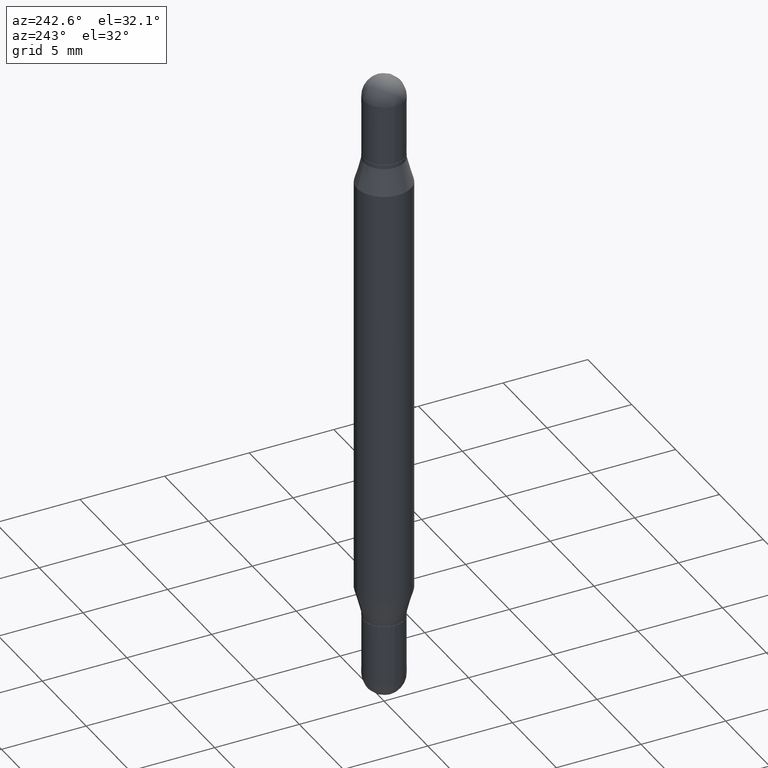
[diagram: clean part render]
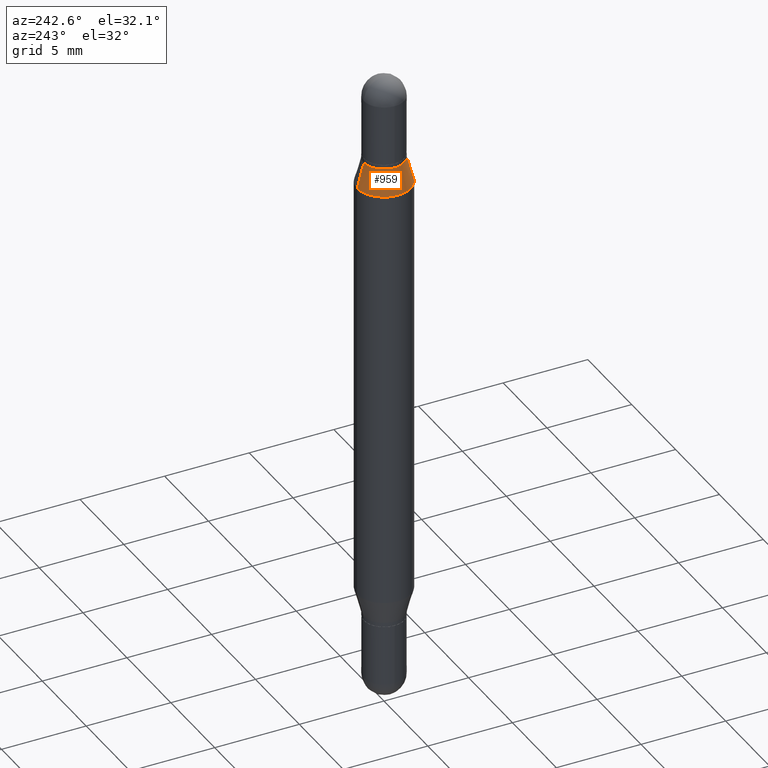
[diagram: same view with one face highlighted and labeled with its STEP entity id]
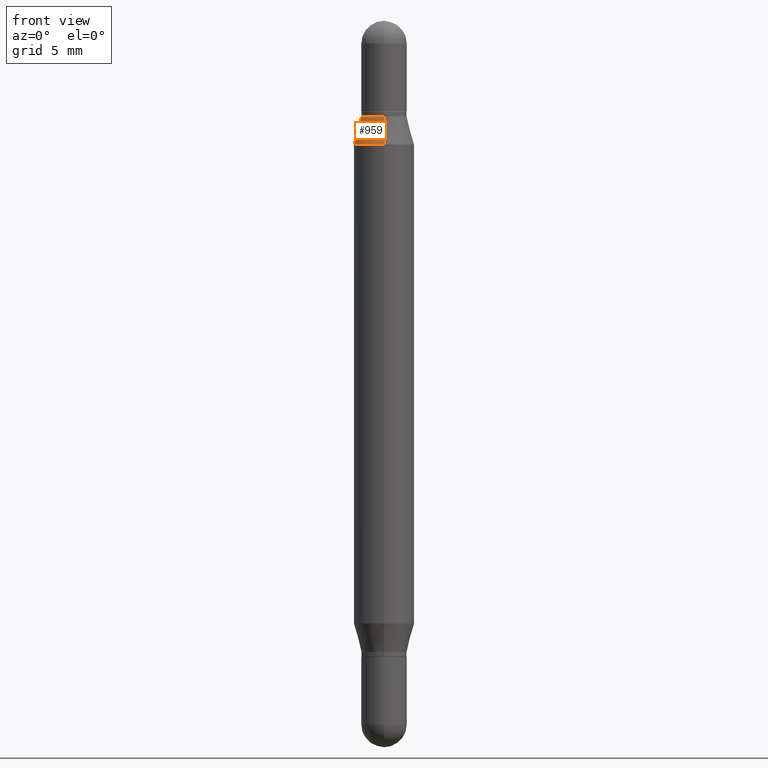
[diagram: same view with one face highlighted and labeled with its STEP entity id]
A machine part, auxiliary view. The second image highlights one B-rep face of the part: STEP entity #959.
A second angle (front view) of the same face is appended — the face is thin or edge-on in the first view.
In plain terms, the highlighted conical surface has half-angle 15 deg.
Its self-contained STEP definition (entity closure, byte-faithful):
#30 = CARTESIAN_POINT ( 'NONE',  ( 3.043837628940657870E-29, -8.973010728738630843E-16, -0.2552199925980758177 ) ) ;
#40 = DIRECTION ( 'NONE',  ( -6.982962677686265922E-15, -1.000000000000000000, 3.278217592397115862E-15 ) ) ;
#49 = CARTESIAN_POINT ( 'NONE',  ( 3.186201904694526479E-29, -6.947335538414400244E-16, -0.1970000000000001195 ) ) ;
#76 = DIRECTION ( 'NONE',  ( -6.982962677686265133E-15, -1.000000000000000000, 3.640522379616583431E-15 ) ) ;
#77 = VERTEX_POINT ( 'NONE', #921 ) ;
#79 = CARTESIAN_POINT ( 'NONE',  ( 3.217573560955141730E-16, 0.04689999999999894947, -0.1970000000000002860 ) ) ;
#80 = ORIENTED_EDGE ( 'NONE', *, *, #1073, .F. ) ;
#143 = VERTEX_POINT ( 'NONE', #320 ) ;
#161 = AXIS2_PLACEMENT_3D ( 'NONE', #30, #647, #40 ) ;
#180 = DIRECTION ( 'NONE',  ( 2.445281584569858182E-29, 3.479346354968757056E-15, 1.000000000000000000 ) ) ;
#186 = EDGE_CURVE ( 'NONE', #77, #143, #697, .T. ) ;
#221 = CARTESIAN_POINT ( 'NONE',  ( 3.217573560955143209E-16, 0.04689999999999894947, -0.1970000000000002860 ) ) ;
#229 = ORIENTED_EDGE ( 'NONE', *, *, #186, .T. ) ;
#230 = ORIENTED_EDGE ( 'NONE', *, *, #971, .T. ) ;
#256 = DIRECTION ( 'NONE',  ( -1.807323732225328562E-15, -0.2588190451025247363, -0.9659258262890673130 ) ) ;
#320 = CARTESIAN_POINT ( 'NONE',  ( -4.364351673553612490E-16, -0.06250000000000090206, -0.2552199925980755957 ) ) ;
#321 = CONICAL_SURFACE ( 'NONE', #829, 0.04689999999999964336, 0.2617993877991500740 ) ;
#336 = LINE ( 'NONE', #79, #551 ) ;
#342 = AXIS2_PLACEMENT_3D ( 'NONE', #779, #180, #521 ) ;
#426 = DIRECTION ( 'NONE',  ( 1.775627540710963525E-15, 0.2588190451025179639, -0.9659258262890690894 ) ) ;
#457 = EDGE_CURVE ( 'NONE', #1056, #143, #874, .T. ) ;
#497 = DIRECTION ( 'NONE',  ( -2.445281584569858182E-29, -3.479346354968757056E-15, -1.000000000000000000 ) ) ;
#521 = DIRECTION ( 'NONE',  ( -6.982962677686265133E-15, -1.000000000000000000, 3.640522379616583431E-15 ) ) ;
#524 = ORIENTED_EDGE ( 'NONE', *, *, #457, .F. ) ;
#551 = VECTOR ( 'NONE', #426, 39.37007874015748854 ) ;
#647 = DIRECTION ( 'NONE',  ( 2.445281584569858182E-29, 3.479346354968757056E-15, 1.000000000000000000 ) ) ;
#697 = CIRCLE ( 'NONE', #161, 0.06250000000000000000 ) ;
#702 = VERTEX_POINT ( 'NONE', #221 ) ;
#705 = EDGE_LOOP ( 'NONE', ( #80, #230, #229, #524 ) ) ;
#770 = CARTESIAN_POINT ( 'NONE',  ( -3.275009495834514884E-16, -0.04690000000000033031, -0.1969999999999999529 ) ) ;
#779 = CARTESIAN_POINT ( 'NONE',  ( 3.186201904694526479E-29, -6.947335538414400244E-16, -0.1970000000000001195 ) ) ;
#829 = AXIS2_PLACEMENT_3D ( 'NONE', #49, #497, #76 ) ;
#869 = VECTOR ( 'NONE', #256, 39.37007874015748854 ) ;
#874 = LINE ( 'NONE', #770, #869 ) ;
#921 = CARTESIAN_POINT ( 'NONE',  ( 4.287811248607510938E-16, 0.06249999999999910488, -0.2552199925980759843 ) ) ;
#939 = FACE_OUTER_BOUND ( 'NONE', #705, .T. ) ;
#944 = CIRCLE ( 'NONE', #342, 0.04689999999999964336 ) ;
#955 = CARTESIAN_POINT ( 'NONE',  ( -3.275009495834514884E-16, -0.04690000000000033031, -0.1969999999999999529 ) ) ;
#959 = ADVANCED_FACE ( 'NONE', ( #939 ), #321, .T. ) ;
#971 = EDGE_CURVE ( 'NONE', #702, #77, #336, .T. ) ;
#1056 = VERTEX_POINT ( 'NONE', #955 ) ;
#1073 = EDGE_CURVE ( 'NONE', #702, #1056, #944, .T. ) ;